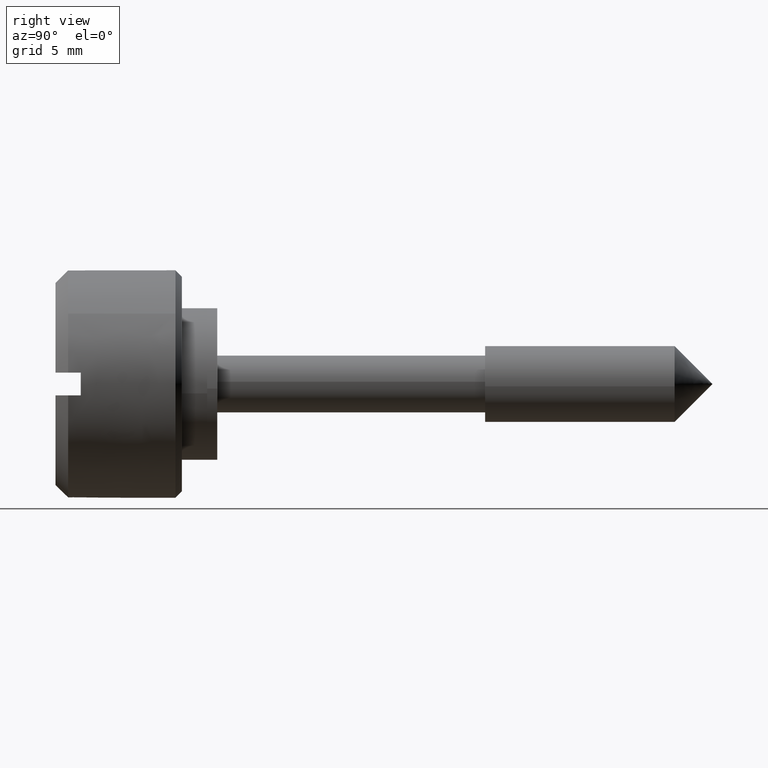
[diagram: clean part render]
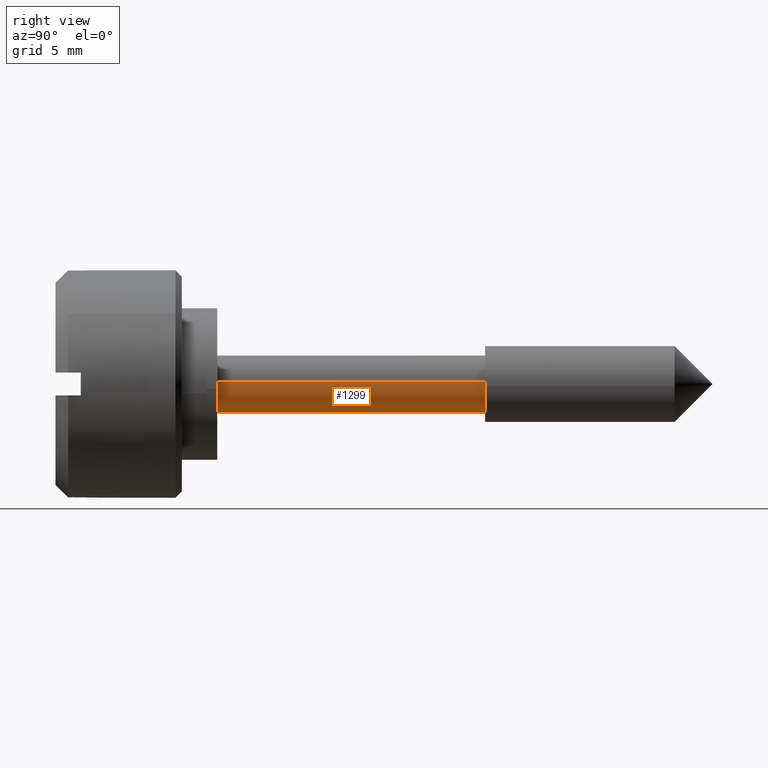
[diagram: same view with one face highlighted and labeled with its STEP entity id]
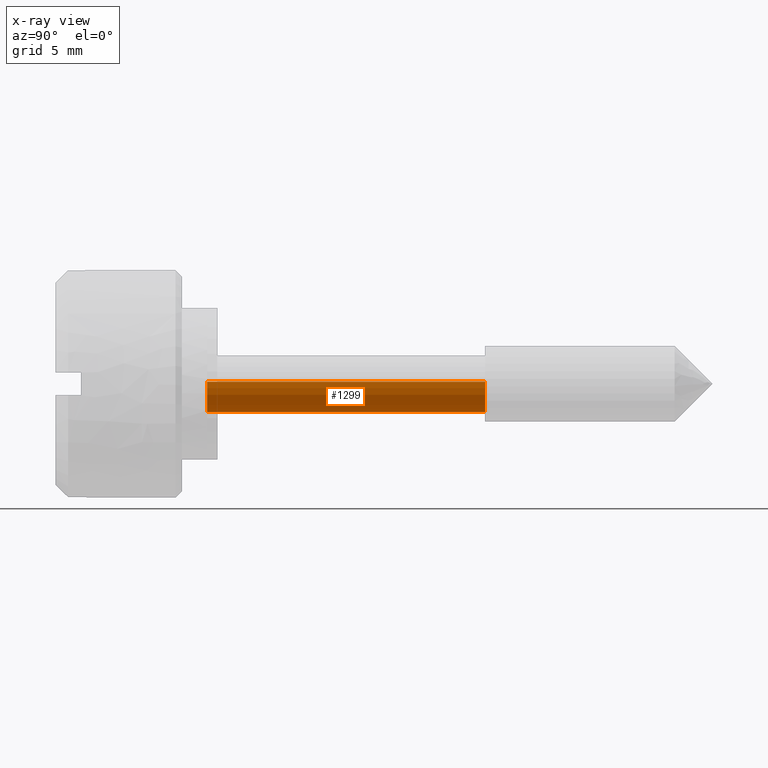
[diagram: x-ray of the same camera — body ghosted, the highlighted face saturated]
A machine part, right view. The second image highlights one B-rep face of the part: STEP entity #1299.
The next image is the same camera in x-ray: the body ghosted, the highlighted face saturated — about 0% of this face is hidden behind the body in this view.
In plain terms, the highlighted face is a freeform B-spline surface patch.
Its self-contained STEP definition (entity closure, byte-faithful):
#1201=CARTESIAN_POINT('',(22.550000000000001,2.243064000899537,-0.176532965387653));
#1202=CARTESIAN_POINT('',(22.550000000000004,2.066531035511885,-2.419596966287189));
#1203=CARTESIAN_POINT('',(22.550000000000001,-0.176532965387653,-2.243064000899537));
#1204=CARTESIAN_POINT('',(22.550000000000004,-2.419596966287189,-2.066531035511885));
#1205=CARTESIAN_POINT('',(22.550000000000001,-2.243064000899537,0.176532965387653));
#1206=CARTESIAN_POINT('',(-0.563749999999999,2.243064000899537,-0.176532965387653));
#1207=CARTESIAN_POINT('',(-0.563749999999999,2.066531035511885,-2.419596966287189));
#1208=CARTESIAN_POINT('',(-0.563749999999999,-0.176532965387653,-2.243064000899537));
#1209=CARTESIAN_POINT('',(-0.563749999999999,-2.419596966287189,-2.066531035511885));
#1210=CARTESIAN_POINT('',(-0.563749999999999,-2.243064000899537,0.176532965387653));
#1218=(BOUNDED_SURFACE()B_SPLINE_SURFACE(2,1,((#1201,#1206),(#1202,#1207),(#1203,#1208),(#1204,#1209),(#1205,#1210)),.UNSPECIFIED.,.F.,.F.,.U.)B_SPLINE_SURFACE_WITH_KNOTS((3,2,3),(2,2),(0.0,3.727922061357853,7.455844122715707),(0.0,23.113750000000000),.UNSPECIFIED.)GEOMETRIC_REPRESENTATION_ITEM()RATIONAL_B_SPLINE_SURFACE(((1.0,1.0),(0.707106781186548,0.707106781186548),(1.0,1.0),(0.707106781186548,0.707106781186548),(1.0,1.0)))REPRESENTATION_ITEM('')SURFACE());
#1219=CARTESIAN_POINT('',(22.0,0.0,-2.250000000000000));
#1220=VERTEX_POINT('',#1219);
#1221=CARTESIAN_POINT('',(22.0,2.243064000891777,-0.176532965486256));
#1222=VERTEX_POINT('',#1221);
#1223=CARTESIAN_POINT('',(22.0,0.0,-2.250000000000000));
#1224=CARTESIAN_POINT('',(22.0,2.079878606047539,-2.250000000000000));
#1225=CARTESIAN_POINT('',(22.0,2.243064000891776,-0.176532965486256));
#1233=(BOUNDED_CURVE()B_SPLINE_CURVE(2,(#1223,#1224,#1225),.UNSPECIFIED.,.F.,.U.)B_SPLINE_CURVE_WITH_KNOTS((3,3),(0.0,0.236331300617695),.UNSPECIFIED.)CURVE()GEOMETRIC_REPRESENTATION_ITEM()RATIONAL_B_SPLINE_CURVE((1.0,0.723120658622854,0.969723356140362))REPRESENTATION_ITEM(''));
#1234=EDGE_CURVE('',#1220,#1222,#1233,.T.);
#1235=ORIENTED_EDGE('',*,*,#1234,.F.);
#1236=CARTESIAN_POINT('',(22.0,-2.243064000891777,0.176532965486256));
#1237=VERTEX_POINT('',#1236);
#1238=CARTESIAN_POINT('',(22.0,-2.243064000891776,0.176532965486256));
#1239=CARTESIAN_POINT('',(21.999999999999996,-2.250000000000000,0.088402740866319));
#1240=CARTESIAN_POINT('',(22.0,-2.250000000000000,0.0));
#1241=CARTESIAN_POINT('',(21.999999999999993,-2.250000000000000,-2.250000000000000));
#1242=CARTESIAN_POINT('',(22.0,0.0,-2.250000000000000));
#1250=(BOUNDED_CURVE()B_SPLINE_CURVE(2,(#1238,#1239,#1240,#1241,#1242),.UNSPECIFIED.,.F.,.U.)B_SPLINE_CURVE_WITH_KNOTS((3,2,3),(0.736331300617695,0.750000000000000,1.0),.UNSPECIFIED.)CURVE()GEOMETRIC_REPRESENTATION_ITEM()RATIONAL_B_SPLINE_CURVE((0.969723356140362,0.983986122563693,1.0,0.707106781186547,1.0))REPRESENTATION_ITEM(''));
#1251=EDGE_CURVE('',#1237,#1220,#1250,.T.);
#1252=ORIENTED_EDGE('',*,*,#1251,.F.);
#1253=CARTESIAN_POINT('',(-4.440892E-016,-2.243064000891777,0.176532965486256));
#1254=VERTEX_POINT('',#1253);
#1255=CARTESIAN_POINT('',(22.0,-2.243064000891777,0.176532965486256));
#1256=CARTESIAN_POINT('',(-4.440892E-016,-2.243064000891777,0.176532965486256));
#1257=QUASI_UNIFORM_CURVE('',1,(#1255,#1256),.UNSPECIFIED.,.F.,.U.);
#1258=EDGE_CURVE('',#1237,#1254,#1257,.T.);
#1259=ORIENTED_EDGE('',*,*,#1258,.T.);
#1260=CARTESIAN_POINT('',(0.0,0.0,-2.250000000000000));
#1261=VERTEX_POINT('',#1260);
#1262=CARTESIAN_POINT('',(-4.440892E-016,-2.243064000891776,0.176532965486256));
#1263=CARTESIAN_POINT('',(0.0,-2.250000000000000,0.088402740866319));
#1264=CARTESIAN_POINT('',(0.0,-2.250000000000000,0.0));
#1265=CARTESIAN_POINT('',(0.0,-2.250000000000000,-2.250000000000000));
#1266=CARTESIAN_POINT('',(0.0,0.0,-2.250000000000000));
#1274=(BOUNDED_CURVE()B_SPLINE_CURVE(2,(#1262,#1263,#1264,#1265,#1266),.UNSPECIFIED.,.F.,.U.)B_SPLINE_CURVE_WITH_KNOTS((3,2,3),(0.736331300617695,0.750000000000000,1.0),.UNSPECIFIED.)CURVE()GEOMETRIC_REPRESENTATION_ITEM()RATIONAL_B_SPLINE_CURVE((0.969723356140362,0.983986122563693,1.0,0.707106781186547,1.0))REPRESENTATION_ITEM(''));
#1275=EDGE_CURVE('',#1254,#1261,#1274,.T.);
#1276=ORIENTED_EDGE('',*,*,#1275,.T.);
#1277=CARTESIAN_POINT('',(-4.440892E-016,2.243064000891777,-0.176532965486256));
#1278=VERTEX_POINT('',#1277);
#1279=CARTESIAN_POINT('',(0.0,0.0,-2.250000000000000));
#1280=CARTESIAN_POINT('',(0.0,2.079878606047539,-2.250000000000000));
#1281=CARTESIAN_POINT('',(-4.440892E-016,2.243064000891776,-0.176532965486256));
#1289=(BOUNDED_CURVE()B_SPLINE_CURVE(2,(#1279,#1280,#1281),.UNSPECIFIED.,.F.,.U.)B_SPLINE_CURVE_WITH_KNOTS((3,3),(0.0,0.236331300617695),.UNSPECIFIED.)CURVE()GEOMETRIC_REPRESENTATION_ITEM()RATIONAL_B_SPLINE_CURVE((1.0,0.723120658622854,0.969723356140362))REPRESENTATION_ITEM(''));
#1290=EDGE_CURVE('',#1261,#1278,#1289,.T.);
#1291=ORIENTED_EDGE('',*,*,#1290,.T.);
#1292=CARTESIAN_POINT('',(22.0,2.243064000891777,-0.176532965486256));
#1293=CARTESIAN_POINT('',(-4.440892E-016,2.243064000891777,-0.176532965486256));
#1294=QUASI_UNIFORM_CURVE('',1,(#1292,#1293),.UNSPECIFIED.,.F.,.U.);
#1295=EDGE_CURVE('',#1222,#1278,#1294,.T.);
#1296=ORIENTED_EDGE('',*,*,#1295,.F.);
#1297=EDGE_LOOP('',(#1235,#1252,#1259,#1276,#1291,#1296));
#1298=FACE_OUTER_BOUND('',#1297,.T.);
#1299=ADVANCED_FACE('',(#1298),#1218,.T.);